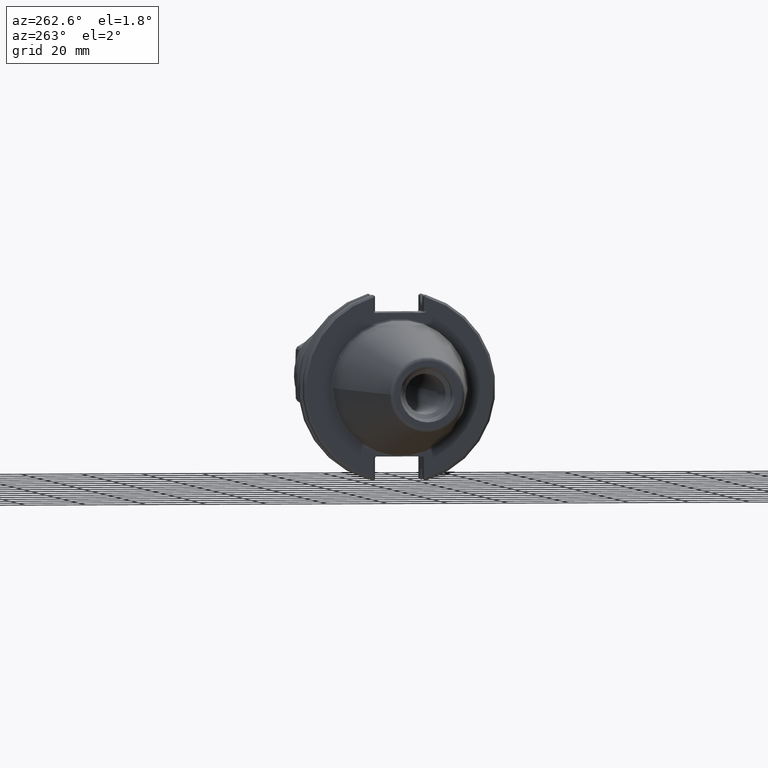
[diagram: clean part render]
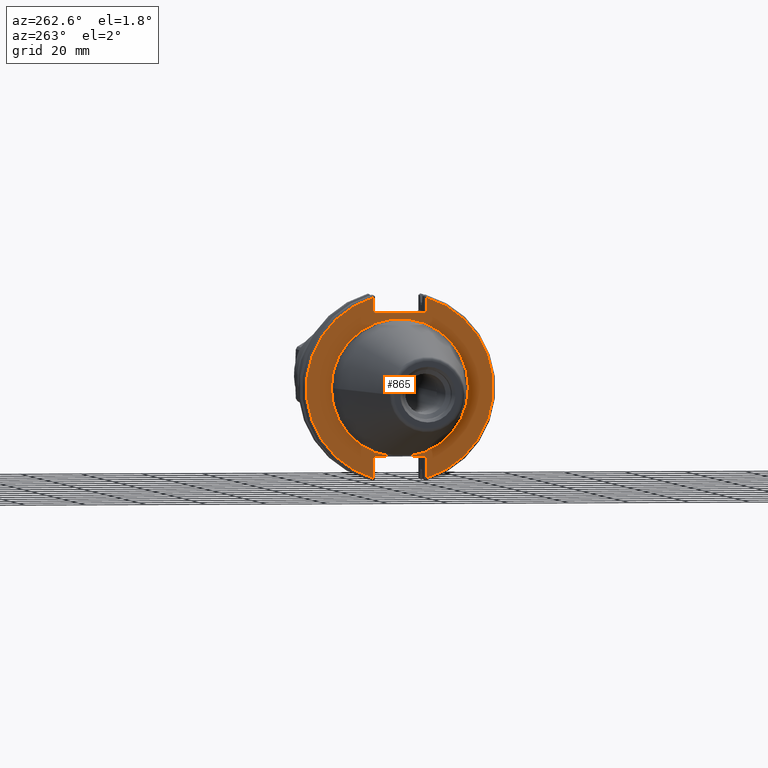
[diagram: same view with one face highlighted and labeled with its STEP entity id]
A machine part, auxiliary view. The second image highlights one B-rep face of the part: STEP entity #865.
In plain terms, the highlighted planar face has unit normal (-1, 0, 0).
Its self-contained STEP definition (entity closure, byte-faithful):
#653=CARTESIAN_POINT('',(0.125,0.316715728752819,0.972));
#654=VERTEX_POINT('',#653);
#663=CARTESIAN_POINT('',(0.125,-0.316715728752257,0.972));
#664=VERTEX_POINT('',#663);
#665=CARTESIAN_POINT('',(0.125,0.316715728752819,0.972));
#666=DIRECTION('',(0.0,-1.0,0.0));
#667=VECTOR('',#666,0.633431457505076);
#668=LINE('',#665,#667);
#669=EDGE_CURVE('',#654,#664,#668,.T.);
#719=CARTESIAN_POINT('',(0.125,-0.11171839597846,-0.888));
#720=VERTEX_POINT('',#719);
#721=CARTESIAN_POINT('',(0.125,0.11171839597846,-0.888));
#722=VERTEX_POINT('',#721);
#737=CARTESIAN_POINT('',(0.125,0.0,0.0));
#738=DIRECTION('',(-1.0,0.0,0.0));
#739=DIRECTION('',(0.0,-1.0,0.0));
#740=AXIS2_PLACEMENT_3D('',#737,#738,#739);
#741=CIRCLE('',#740,0.895);
#742=EDGE_CURVE('',#720,#722,#741,.T.);
#758=CARTESIAN_POINT('',(0.125,1.0625,0.0));
#759=DIRECTION('',(-1.0,0.0,0.0));
#760=DIRECTION('',(0.0,0.0,1.0));
#761=AXIS2_PLACEMENT_3D('',#758,#759,#760);
#762=PLANE('',#761);
#763=ORIENTED_EDGE('',*,*,#742,.F.);
#764=CARTESIAN_POINT('',(0.125,-0.316715728752297,-0.888));
#765=VERTEX_POINT('',#764);
#766=CARTESIAN_POINT('',(0.125,-0.316715728752297,-0.888));
#767=DIRECTION('',(0.0,1.0,0.0));
#768=VECTOR('',#767,0.204997332773838);
#769=LINE('',#766,#768);
#770=EDGE_CURVE('',#765,#720,#769,.T.);
#771=ORIENTED_EDGE('',*,*,#770,.F.);
#772=CARTESIAN_POINT('',(0.125,-0.344999999999762,-0.908));
#773=VERTEX_POINT('',#772);
#774=CARTESIAN_POINT('',(0.125,-0.316715728752297,-0.908));
#775=DIRECTION('',(-1.0,0.0,0.0));
#776=DIRECTION('',(0.0,-1.0,0.0));
#777=AXIS2_PLACEMENT_3D('',#774,#775,#776);
#778=ELLIPSE('',#777,0.028284271247464,0.02);
#779=EDGE_CURVE('',#773,#765,#778,.T.);
#780=ORIENTED_EDGE('',*,*,#779,.F.);
#781=CARTESIAN_POINT('',(0.125,-0.344999999999762,-1.170202973846915));
#782=VERTEX_POINT('',#781);
#783=CARTESIAN_POINT('',(0.125,-0.344999999999762,-1.170202973846915));
#784=DIRECTION('',(0.0,0.0,1.0));
#785=VECTOR('',#784,0.262202973846915);
#786=LINE('',#783,#785);
#787=EDGE_CURVE('',#782,#773,#786,.T.);
#788=ORIENTED_EDGE('',*,*,#787,.F.);
#789=CARTESIAN_POINT('',(0.125,-0.344999999999719,1.170202973846928));
#790=VERTEX_POINT('',#789);
#791=CARTESIAN_POINT('',(0.125,0.0,0.0));
#792=DIRECTION('',(1.0,0.0,0.0));
#793=DIRECTION('',(0.0,-1.0,0.0));
#794=AXIS2_PLACEMENT_3D('',#791,#792,#793);
#795=CIRCLE('',#794,1.22);
#796=EDGE_CURVE('',#790,#782,#795,.T.);
#797=ORIENTED_EDGE('',*,*,#796,.F.);
#798=CARTESIAN_POINT('',(0.125,-0.344999999999719,0.992));
#799=VERTEX_POINT('',#798);
#800=CARTESIAN_POINT('',(0.125,-0.344999999999719,0.992));
#801=DIRECTION('',(0.0,0.0,1.0));
#802=VECTOR('',#801,0.178202973846928);
#803=LINE('',#800,#802);
#804=EDGE_CURVE('',#799,#790,#803,.T.);
#805=ORIENTED_EDGE('',*,*,#804,.F.);
#806=CARTESIAN_POINT('',(0.125,-0.316715728752257,0.992));
#807=DIRECTION('',(-1.0,0.0,0.0));
#808=DIRECTION('',(0.0,-1.0,0.0));
#809=AXIS2_PLACEMENT_3D('',#806,#807,#808);
#810=ELLIPSE('',#809,0.028284271247462,0.02);
#811=EDGE_CURVE('',#664,#799,#810,.T.);
#812=ORIENTED_EDGE('',*,*,#811,.F.);
#813=ORIENTED_EDGE('',*,*,#669,.F.);
#814=CARTESIAN_POINT('',(0.125,0.345000000000281,0.992));
#815=VERTEX_POINT('',#814);
#816=CARTESIAN_POINT('',(0.125,0.316715728752819,0.992));
#817=DIRECTION('',(-1.0,0.0,0.0));
#818=DIRECTION('',(0.0,1.0,0.0));
#819=AXIS2_PLACEMENT_3D('',#816,#817,#818);
#820=ELLIPSE('',#819,0.028284271247462,0.02);
#821=EDGE_CURVE('',#815,#654,#820,.T.);
#822=ORIENTED_EDGE('',*,*,#821,.F.);
#823=CARTESIAN_POINT('',(0.125,0.345000000000281,1.170202973846762));
#824=VERTEX_POINT('',#823);
#825=CARTESIAN_POINT('',(0.125,0.345000000000281,1.170202973846762));
#826=DIRECTION('',(0.0,0.0,-1.0));
#827=VECTOR('',#826,0.178202973846762);
#828=LINE('',#825,#827);
#829=EDGE_CURVE('',#824,#815,#828,.T.);
#830=ORIENTED_EDGE('',*,*,#829,.F.);
#831=CARTESIAN_POINT('',(0.125,0.345000000000239,-1.170202973846775));
#832=VERTEX_POINT('',#831);
#833=CARTESIAN_POINT('',(0.125,0.0,0.0));
#834=DIRECTION('',(1.0,0.0,0.0));
#835=DIRECTION('',(0.0,1.0,0.0));
#836=AXIS2_PLACEMENT_3D('',#833,#834,#835);
#837=CIRCLE('',#836,1.22);
#838=EDGE_CURVE('',#832,#824,#837,.T.);
#839=ORIENTED_EDGE('',*,*,#838,.F.);
#840=CARTESIAN_POINT('',(0.125,0.345000000000239,-0.908));
#841=VERTEX_POINT('',#840);
#842=CARTESIAN_POINT('',(0.125,0.345000000000239,-0.908));
#843=DIRECTION('',(0.0,0.0,-1.0));
#844=VECTOR('',#843,0.262202973846774);
#845=LINE('',#842,#844);
#846=EDGE_CURVE('',#841,#832,#845,.T.);
#847=ORIENTED_EDGE('',*,*,#846,.F.);
#848=CARTESIAN_POINT('',(0.125,0.316715728752779,-0.888));
#849=VERTEX_POINT('',#848);
#850=CARTESIAN_POINT('',(0.125,0.316715728752779,-0.908));
#851=DIRECTION('',(-1.0,0.0,0.0));
#852=DIRECTION('',(0.0,1.0,0.0));
#853=AXIS2_PLACEMENT_3D('',#850,#851,#852);
#854=ELLIPSE('',#853,0.02828427124746,0.02);
#855=EDGE_CURVE('',#849,#841,#854,.T.);
#856=ORIENTED_EDGE('',*,*,#855,.F.);
#857=CARTESIAN_POINT('',(0.125,0.11171839597846,-0.888));
#858=DIRECTION('',(0.0,1.0,0.0));
#859=VECTOR('',#858,0.204997332774319);
#860=LINE('',#857,#859);
#861=EDGE_CURVE('',#722,#849,#860,.T.);
#862=ORIENTED_EDGE('',*,*,#861,.F.);
#863=EDGE_LOOP('',(#763,#771,#780,#788,#797,#805,#812,#813,#822,#830,#839,#847,#856,#862));
#864=FACE_OUTER_BOUND('',#863,.T.);
#865=ADVANCED_FACE('',(#864),#762,.T.);